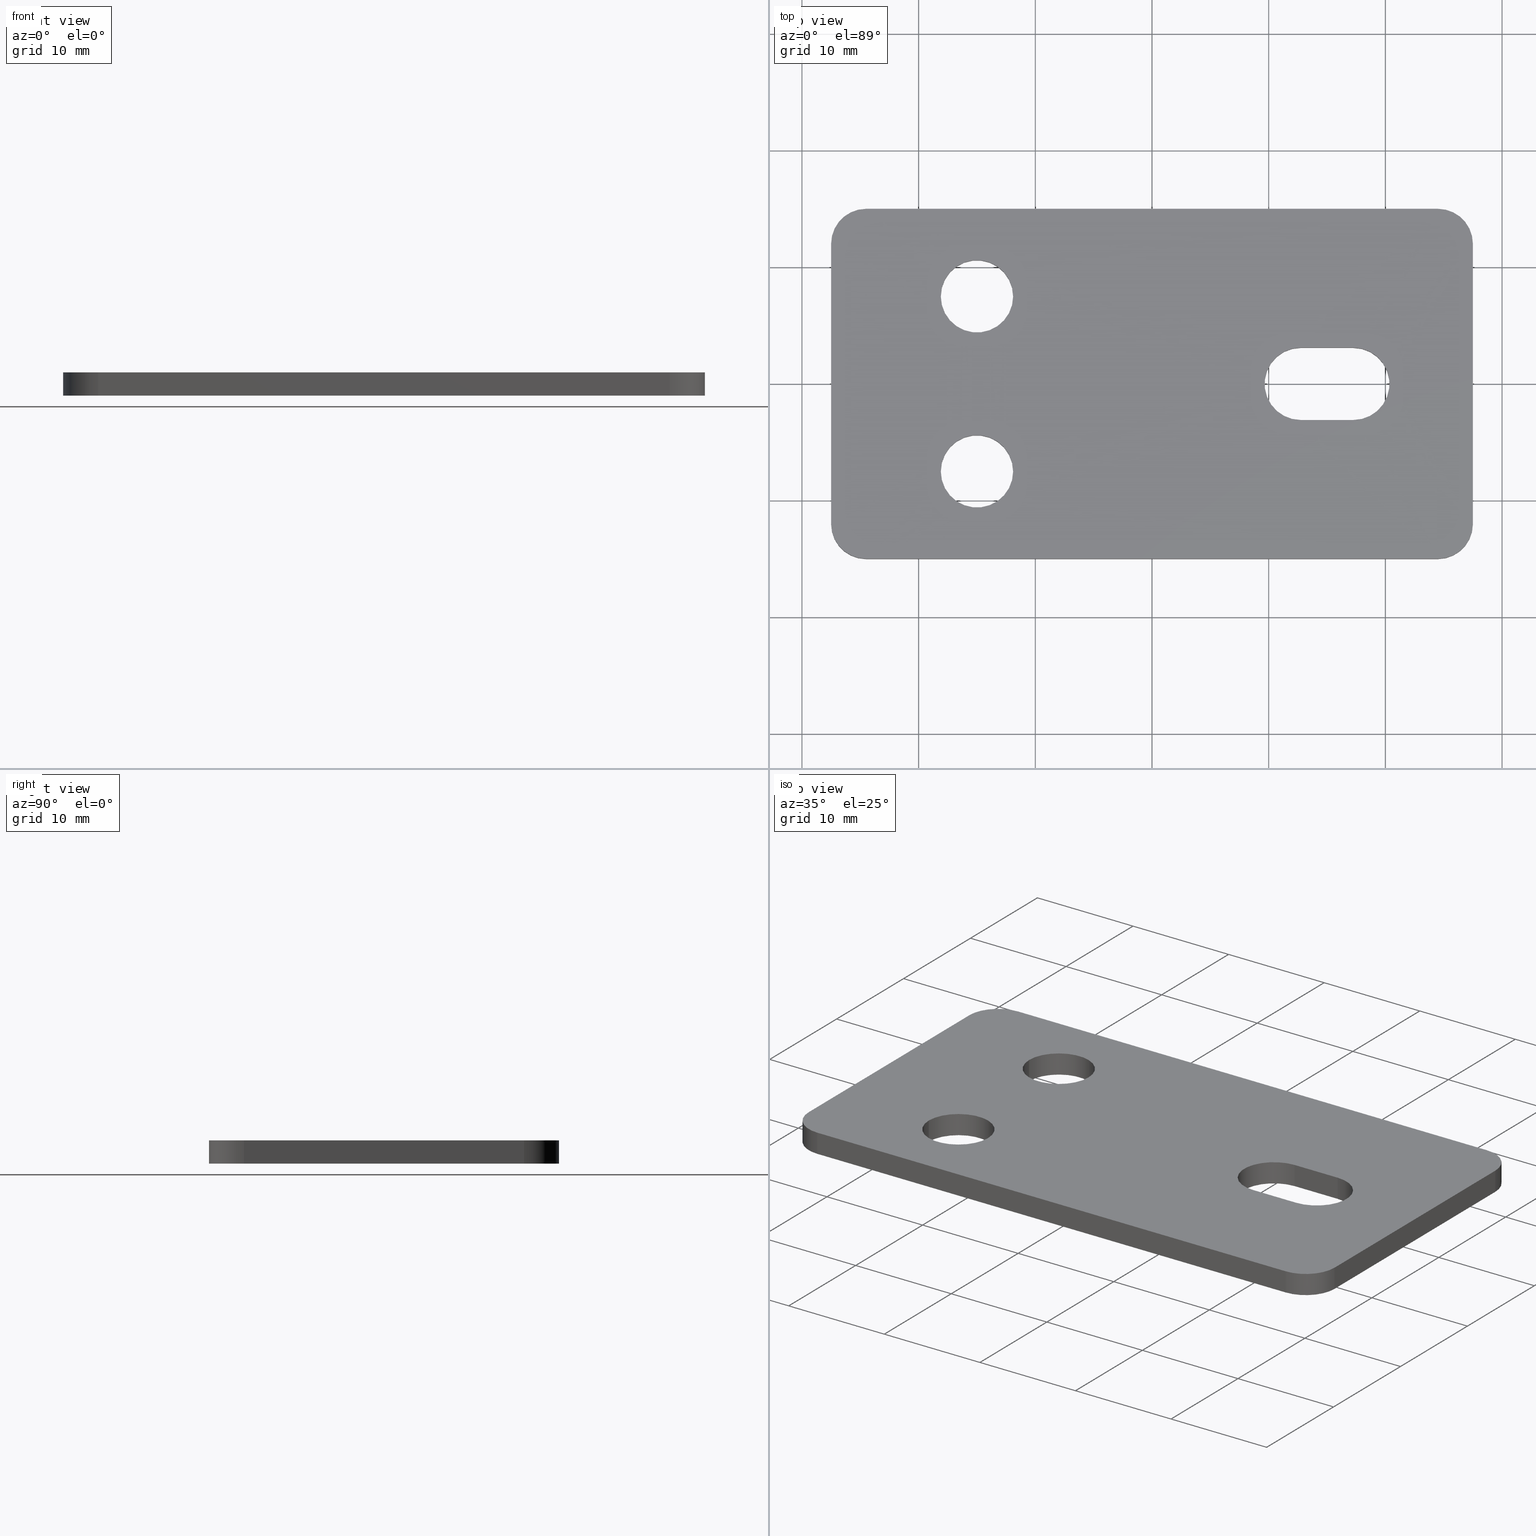
[diagram: canonical four-view strip — front | top / right | iso, engineering-drawing reading convention]
A machine part, canonical four-view strip (front | top / right | iso — engineering-drawing reading convention). The complete STEP part file that produces these views, byte-faithful:
ISO-10303-21;
HEADER;
/* Generated by software containing ST-Developer
 * from STEP Tools, Inc. (www.steptools.com) 
 */

FILE_DESCRIPTION(
/* description */ ('SUPPORTO PIATTO 30x55 #2 LAMIERA INOX'),
/* implementation_level */ '2;1');

FILE_NAME(
/* name */ 
'Q:\\Catalogo\\3_Profili e accessori MACAP\\Per Download Web e catalog
o artaceo\\ACCESSORI\\PAGINA 54\\DSPXX0000101-XT90017.stp',
/* time_stamp */ '2019-12-16T18:21:17+01:00',
/* author */ ('fzagni'),
/* organization */ (''),
/* preprocessor_version */ 'ST-DEVELOPER v17.2',
/* originating_system */ 'Autodesk Inventor 2019',
/* authorisation */ '');

FILE_SCHEMA (('AUTOMOTIVE_DESIGN { 1 0 10303 214 3 1 1 }'));
ENDSEC;

DATA;
#10=MECHANICAL_DESIGN_GEOMETRIC_PRESENTATION_REPRESENTATION('',(#13),#567);
#11=SHAPE_REPRESENTATION_RELATIONSHIP('SRR','None',#574,#12);
#12=ADVANCED_BREP_SHAPE_REPRESENTATION('',(#14),#566);
#13=STYLED_ITEM('',(#583),#14);
#14=MANIFOLD_SOLID_BREP('Solido1',#323);
#15=FACE_BOUND('',#52,.T.);
#16=FACE_BOUND('',#53,.T.);
#17=FACE_BOUND('',#54,.T.);
#18=FACE_BOUND('',#64,.T.);
#19=FACE_BOUND('',#65,.T.);
#20=FACE_BOUND('',#66,.T.);
#21=PLANE('',#346);
#22=PLANE('',#350);
#23=PLANE('',#354);
#24=PLANE('',#355);
#25=PLANE('',#363);
#26=PLANE('',#366);
#27=PLANE('',#369);
#28=PLANE('',#376);
#29=FACE_OUTER_BOUND('',#45,.T.);
#30=FACE_OUTER_BOUND('',#46,.T.);
#31=FACE_OUTER_BOUND('',#47,.T.);
#32=FACE_OUTER_BOUND('',#48,.T.);
#33=FACE_OUTER_BOUND('',#49,.T.);
#34=FACE_OUTER_BOUND('',#50,.T.);
#35=FACE_OUTER_BOUND('',#51,.T.);
#36=FACE_OUTER_BOUND('',#55,.T.);
#37=FACE_OUTER_BOUND('',#56,.T.);
#38=FACE_OUTER_BOUND('',#57,.T.);
#39=FACE_OUTER_BOUND('',#58,.T.);
#40=FACE_OUTER_BOUND('',#59,.T.);
#41=FACE_OUTER_BOUND('',#60,.T.);
#42=FACE_OUTER_BOUND('',#61,.T.);
#43=FACE_OUTER_BOUND('',#62,.T.);
#44=FACE_OUTER_BOUND('',#63,.T.);
#45=EDGE_LOOP('',(#211,#212,#213,#214));
#46=EDGE_LOOP('',(#215,#216,#217,#218));
#47=EDGE_LOOP('',(#219,#220,#221,#222));
#48=EDGE_LOOP('',(#223,#224,#225,#226));
#49=EDGE_LOOP('',(#227,#228,#229,#230));
#50=EDGE_LOOP('',(#231,#232,#233,#234));
#51=EDGE_LOOP('',(#235,#236,#237,#238,#239,#240,#241,#242));
#52=EDGE_LOOP('',(#243,#244,#245,#246));
#53=EDGE_LOOP('',(#247));
#54=EDGE_LOOP('',(#248));
#55=EDGE_LOOP('',(#249,#250,#251,#252));
#56=EDGE_LOOP('',(#253,#254,#255,#256));
#57=EDGE_LOOP('',(#257,#258,#259,#260));
#58=EDGE_LOOP('',(#261,#262,#263,#264));
#59=EDGE_LOOP('',(#265,#266,#267,#268));
#60=EDGE_LOOP('',(#269,#270,#271,#272));
#61=EDGE_LOOP('',(#273,#274,#275,#276,#277));
#62=EDGE_LOOP('',(#278,#279,#280,#281,#282));
#63=EDGE_LOOP('',(#283,#284,#285,#286,#287,#288,#289,#290));
#64=EDGE_LOOP('',(#291,#292,#293,#294));
#65=EDGE_LOOP('',(#295,#296));
#66=EDGE_LOOP('',(#297,#298));
#67=LINE('',#479,#93);
#68=LINE('',#482,#94);
#69=LINE('',#485,#95);
#70=LINE('',#487,#96);
#71=LINE('',#488,#97);
#72=LINE('',#494,#98);
#73=LINE('',#496,#99);
#74=LINE('',#497,#100);
#75=LINE('',#503,#101);
#76=LINE('',#506,#102);
#77=LINE('',#509,#103);
#78=LINE('',#511,#104);
#79=LINE('',#512,#105);
#80=LINE('',#515,#106);
#81=LINE('',#519,#107);
#82=LINE('',#523,#108);
#83=LINE('',#531,#109);
#84=LINE('',#535,#110);
#85=LINE('',#536,#111);
#86=LINE('',#539,#112);
#87=LINE('',#543,#113);
#88=LINE('',#544,#114);
#89=LINE('',#547,#115);
#90=LINE('',#550,#116);
#91=LINE('',#556,#117);
#92=LINE('',#562,#118);
#93=VECTOR('',#383,10.);
#94=VECTOR('',#386,10.);
#95=VECTOR('',#389,10.);
#96=VECTOR('',#390,10.);
#97=VECTOR('',#391,10.);
#98=VECTOR('',#398,10.);
#99=VECTOR('',#401,10.);
#100=VECTOR('',#402,10.);
#101=VECTOR('',#407,10.);
#102=VECTOR('',#410,10.);
#103=VECTOR('',#413,10.);
#104=VECTOR('',#414,10.);
#105=VECTOR('',#415,10.);
#106=VECTOR('',#418,10.);
#107=VECTOR('',#421,10.);
#108=VECTOR('',#424,10.);
#109=VECTOR('',#433,10.);
#110=VECTOR('',#438,10.);
#111=VECTOR('',#439,10.);
#112=VECTOR('',#442,10.);
#113=VECTOR('',#447,10.);
#114=VECTOR('',#448,10.);
#115=VECTOR('',#451,10.);
#116=VECTOR('',#456,10.);
#117=VECTOR('',#463,3.1);
#118=VECTOR('',#470,3.1);
#119=CIRCLE('',#344,3.1);
#120=CIRCLE('',#345,3.1);
#121=CIRCLE('',#348,3.1);
#122=CIRCLE('',#349,3.1);
#123=CIRCLE('',#352,3.);
#124=CIRCLE('',#353,3.);
#125=CIRCLE('',#356,3.);
#126=CIRCLE('',#357,3.);
#127=CIRCLE('',#358,3.);
#128=CIRCLE('',#359,3.1);
#129=CIRCLE('',#360,3.1);
#130=CIRCLE('',#362,3.);
#131=CIRCLE('',#365,3.);
#132=CIRCLE('',#368,3.);
#133=CIRCLE('',#371,3.1);
#134=CIRCLE('',#372,3.1);
#135=CIRCLE('',#374,3.1);
#136=CIRCLE('',#375,3.1);
#137=VERTEX_POINT('',#475);
#138=VERTEX_POINT('',#476);
#139=VERTEX_POINT('',#478);
#140=VERTEX_POINT('',#480);
#141=VERTEX_POINT('',#484);
#142=VERTEX_POINT('',#486);
#143=VERTEX_POINT('',#490);
#144=VERTEX_POINT('',#492);
#145=VERTEX_POINT('',#499);
#146=VERTEX_POINT('',#500);
#147=VERTEX_POINT('',#502);
#148=VERTEX_POINT('',#504);
#149=VERTEX_POINT('',#508);
#150=VERTEX_POINT('',#510);
#151=VERTEX_POINT('',#514);
#152=VERTEX_POINT('',#516);
#153=VERTEX_POINT('',#518);
#154=VERTEX_POINT('',#520);
#155=VERTEX_POINT('',#522);
#156=VERTEX_POINT('',#525);
#157=VERTEX_POINT('',#527);
#158=VERTEX_POINT('',#530);
#159=VERTEX_POINT('',#534);
#160=VERTEX_POINT('',#538);
#161=VERTEX_POINT('',#542);
#162=VERTEX_POINT('',#546);
#163=VERTEX_POINT('',#552);
#164=VERTEX_POINT('',#553);
#165=VERTEX_POINT('',#558);
#166=VERTEX_POINT('',#559);
#167=EDGE_CURVE('',#137,#138,#119,.T.);
#168=EDGE_CURVE('',#139,#137,#67,.T.);
#169=EDGE_CURVE('',#140,#139,#120,.T.);
#170=EDGE_CURVE('',#140,#138,#68,.T.);
#171=EDGE_CURVE('',#138,#141,#69,.T.);
#172=EDGE_CURVE('',#142,#140,#70,.T.);
#173=EDGE_CURVE('',#142,#141,#71,.T.);
#174=EDGE_CURVE('',#141,#143,#121,.T.);
#175=EDGE_CURVE('',#144,#142,#122,.T.);
#176=EDGE_CURVE('',#144,#143,#72,.T.);
#177=EDGE_CURVE('',#143,#137,#73,.T.);
#178=EDGE_CURVE('',#139,#144,#74,.T.);
#179=EDGE_CURVE('',#145,#146,#123,.T.);
#180=EDGE_CURVE('',#146,#147,#75,.T.);
#181=EDGE_CURVE('',#147,#148,#124,.T.);
#182=EDGE_CURVE('',#148,#145,#76,.T.);
#183=EDGE_CURVE('',#149,#148,#77,.T.);
#184=EDGE_CURVE('',#150,#149,#78,.T.);
#185=EDGE_CURVE('',#145,#150,#79,.T.);
#186=EDGE_CURVE('',#147,#151,#80,.T.);
#187=EDGE_CURVE('',#152,#151,#125,.T.);
#188=EDGE_CURVE('',#152,#153,#81,.T.);
#189=EDGE_CURVE('',#154,#153,#126,.T.);
#190=EDGE_CURVE('',#154,#155,#82,.T.);
#191=EDGE_CURVE('',#149,#155,#127,.T.);
#192=EDGE_CURVE('',#156,#156,#128,.T.);
#193=EDGE_CURVE('',#157,#157,#129,.T.);
#194=EDGE_CURVE('',#155,#158,#83,.T.);
#195=EDGE_CURVE('',#158,#150,#130,.T.);
#196=EDGE_CURVE('',#159,#154,#84,.T.);
#197=EDGE_CURVE('',#158,#159,#85,.T.);
#198=EDGE_CURVE('',#153,#160,#86,.T.);
#199=EDGE_CURVE('',#160,#159,#131,.T.);
#200=EDGE_CURVE('',#161,#152,#87,.T.);
#201=EDGE_CURVE('',#160,#161,#88,.T.);
#202=EDGE_CURVE('',#151,#162,#89,.T.);
#203=EDGE_CURVE('',#162,#161,#132,.T.);
#204=EDGE_CURVE('',#162,#146,#90,.T.);
#205=EDGE_CURVE('',#163,#164,#133,.T.);
#206=EDGE_CURVE('',#164,#163,#134,.T.);
#207=EDGE_CURVE('',#164,#156,#91,.T.);
#208=EDGE_CURVE('',#165,#166,#135,.T.);
#209=EDGE_CURVE('',#166,#165,#136,.T.);
#210=EDGE_CURVE('',#166,#157,#92,.T.);
#211=ORIENTED_EDGE('',*,*,#167,.F.);
#212=ORIENTED_EDGE('',*,*,#168,.F.);
#213=ORIENTED_EDGE('',*,*,#169,.F.);
#214=ORIENTED_EDGE('',*,*,#170,.T.);
#215=ORIENTED_EDGE('',*,*,#171,.F.);
#216=ORIENTED_EDGE('',*,*,#170,.F.);
#217=ORIENTED_EDGE('',*,*,#172,.F.);
#218=ORIENTED_EDGE('',*,*,#173,.T.);
#219=ORIENTED_EDGE('',*,*,#174,.F.);
#220=ORIENTED_EDGE('',*,*,#173,.F.);
#221=ORIENTED_EDGE('',*,*,#175,.F.);
#222=ORIENTED_EDGE('',*,*,#176,.T.);
#223=ORIENTED_EDGE('',*,*,#177,.F.);
#224=ORIENTED_EDGE('',*,*,#176,.F.);
#225=ORIENTED_EDGE('',*,*,#178,.F.);
#226=ORIENTED_EDGE('',*,*,#168,.T.);
#227=ORIENTED_EDGE('',*,*,#179,.T.);
#228=ORIENTED_EDGE('',*,*,#180,.T.);
#229=ORIENTED_EDGE('',*,*,#181,.T.);
#230=ORIENTED_EDGE('',*,*,#182,.T.);
#231=ORIENTED_EDGE('',*,*,#182,.F.);
#232=ORIENTED_EDGE('',*,*,#183,.F.);
#233=ORIENTED_EDGE('',*,*,#184,.F.);
#234=ORIENTED_EDGE('',*,*,#185,.F.);
#235=ORIENTED_EDGE('',*,*,#181,.F.);
#236=ORIENTED_EDGE('',*,*,#186,.T.);
#237=ORIENTED_EDGE('',*,*,#187,.F.);
#238=ORIENTED_EDGE('',*,*,#188,.T.);
#239=ORIENTED_EDGE('',*,*,#189,.F.);
#240=ORIENTED_EDGE('',*,*,#190,.T.);
#241=ORIENTED_EDGE('',*,*,#191,.F.);
#242=ORIENTED_EDGE('',*,*,#183,.T.);
#243=ORIENTED_EDGE('',*,*,#174,.T.);
#244=ORIENTED_EDGE('',*,*,#177,.T.);
#245=ORIENTED_EDGE('',*,*,#167,.T.);
#246=ORIENTED_EDGE('',*,*,#171,.T.);
#247=ORIENTED_EDGE('',*,*,#192,.T.);
#248=ORIENTED_EDGE('',*,*,#193,.T.);
#249=ORIENTED_EDGE('',*,*,#191,.T.);
#250=ORIENTED_EDGE('',*,*,#194,.T.);
#251=ORIENTED_EDGE('',*,*,#195,.T.);
#252=ORIENTED_EDGE('',*,*,#184,.T.);
#253=ORIENTED_EDGE('',*,*,#194,.F.);
#254=ORIENTED_EDGE('',*,*,#190,.F.);
#255=ORIENTED_EDGE('',*,*,#196,.F.);
#256=ORIENTED_EDGE('',*,*,#197,.F.);
#257=ORIENTED_EDGE('',*,*,#189,.T.);
#258=ORIENTED_EDGE('',*,*,#198,.T.);
#259=ORIENTED_EDGE('',*,*,#199,.T.);
#260=ORIENTED_EDGE('',*,*,#196,.T.);
#261=ORIENTED_EDGE('',*,*,#198,.F.);
#262=ORIENTED_EDGE('',*,*,#188,.F.);
#263=ORIENTED_EDGE('',*,*,#200,.F.);
#264=ORIENTED_EDGE('',*,*,#201,.F.);
#265=ORIENTED_EDGE('',*,*,#187,.T.);
#266=ORIENTED_EDGE('',*,*,#202,.T.);
#267=ORIENTED_EDGE('',*,*,#203,.T.);
#268=ORIENTED_EDGE('',*,*,#200,.T.);
#269=ORIENTED_EDGE('',*,*,#180,.F.);
#270=ORIENTED_EDGE('',*,*,#204,.F.);
#271=ORIENTED_EDGE('',*,*,#202,.F.);
#272=ORIENTED_EDGE('',*,*,#186,.F.);
#273=ORIENTED_EDGE('',*,*,#205,.F.);
#274=ORIENTED_EDGE('',*,*,#206,.F.);
#275=ORIENTED_EDGE('',*,*,#207,.T.);
#276=ORIENTED_EDGE('',*,*,#192,.F.);
#277=ORIENTED_EDGE('',*,*,#207,.F.);
#278=ORIENTED_EDGE('',*,*,#208,.F.);
#279=ORIENTED_EDGE('',*,*,#209,.F.);
#280=ORIENTED_EDGE('',*,*,#210,.T.);
#281=ORIENTED_EDGE('',*,*,#193,.F.);
#282=ORIENTED_EDGE('',*,*,#210,.F.);
#283=ORIENTED_EDGE('',*,*,#179,.F.);
#284=ORIENTED_EDGE('',*,*,#185,.T.);
#285=ORIENTED_EDGE('',*,*,#195,.F.);
#286=ORIENTED_EDGE('',*,*,#197,.T.);
#287=ORIENTED_EDGE('',*,*,#199,.F.);
#288=ORIENTED_EDGE('',*,*,#201,.T.);
#289=ORIENTED_EDGE('',*,*,#203,.F.);
#290=ORIENTED_EDGE('',*,*,#204,.T.);
#291=ORIENTED_EDGE('',*,*,#175,.T.);
#292=ORIENTED_EDGE('',*,*,#172,.T.);
#293=ORIENTED_EDGE('',*,*,#169,.T.);
#294=ORIENTED_EDGE('',*,*,#178,.T.);
#295=ORIENTED_EDGE('',*,*,#205,.T.);
#296=ORIENTED_EDGE('',*,*,#206,.T.);
#297=ORIENTED_EDGE('',*,*,#208,.T.);
#298=ORIENTED_EDGE('',*,*,#209,.T.);
#299=CYLINDRICAL_SURFACE('',#343,3.1);
#300=CYLINDRICAL_SURFACE('',#347,3.1);
#301=CYLINDRICAL_SURFACE('',#351,3.);
#302=CYLINDRICAL_SURFACE('',#361,3.);
#303=CYLINDRICAL_SURFACE('',#364,3.);
#304=CYLINDRICAL_SURFACE('',#367,3.);
#305=CYLINDRICAL_SURFACE('',#370,3.1);
#306=CYLINDRICAL_SURFACE('',#373,3.1);
#307=ADVANCED_FACE('',(#29),#299,.F.);
#308=ADVANCED_FACE('',(#30),#21,.F.);
#309=ADVANCED_FACE('',(#31),#300,.F.);
#310=ADVANCED_FACE('',(#32),#22,.F.);
#311=ADVANCED_FACE('',(#33),#301,.T.);
#312=ADVANCED_FACE('',(#34),#23,.T.);
#313=ADVANCED_FACE('',(#35,#15,#16,#17),#24,.F.);
#314=ADVANCED_FACE('',(#36),#302,.T.);
#315=ADVANCED_FACE('',(#37),#25,.T.);
#316=ADVANCED_FACE('',(#38),#303,.T.);
#317=ADVANCED_FACE('',(#39),#26,.T.);
#318=ADVANCED_FACE('',(#40),#304,.T.);
#319=ADVANCED_FACE('',(#41),#27,.T.);
#320=ADVANCED_FACE('',(#42),#305,.F.);
#321=ADVANCED_FACE('',(#43),#306,.F.);
#322=ADVANCED_FACE('',(#44,#18,#19,#20),#28,.T.);
#323=CLOSED_SHELL('',(#307,#308,#309,#310,#311,#312,#313,#314,#315,#316,
#317,#318,#319,#320,#321,#322));
#324=DERIVED_UNIT_ELEMENT(#326,1.);
#325=DERIVED_UNIT_ELEMENT(#569,3.);
#326=(
MASS_UNIT()
NAMED_UNIT(*)
SI_UNIT($,.GRAM.)
);
#327=DERIVED_UNIT((#324,#325));
#328=MEASURE_REPRESENTATION_ITEM('density measure',
POSITIVE_RATIO_MEASURE(8.08),#327);
#329=PROPERTY_DEFINITION_REPRESENTATION(#334,#331);
#330=PROPERTY_DEFINITION_REPRESENTATION(#335,#332);
#331=REPRESENTATION('material name',(#333),#566);
#332=REPRESENTATION('density',(#328),#566);
#333=DESCRIPTIVE_REPRESENTATION_ITEM('Acciaio Inox AISI304',
'Acciaio Inox AISI304');
#334=PROPERTY_DEFINITION('material property','material name',#576);
#335=PROPERTY_DEFINITION('material property','density of part',#576);
#336=DATE_TIME_ROLE('creation_date');
#337=APPLIED_DATE_AND_TIME_ASSIGNMENT(#338,#336,(#576));
#338=DATE_AND_TIME(#339,#340);
#339=CALENDAR_DATE(2012,28,10);
#340=LOCAL_TIME(23,0,0.,#341);
#341=COORDINATED_UNIVERSAL_TIME_OFFSET(0,0,.BEHIND.);
#342=AXIS2_PLACEMENT_3D('placement',#473,#377,#378);
#343=AXIS2_PLACEMENT_3D('',#474,#379,#380);
#344=AXIS2_PLACEMENT_3D('',#477,#381,#382);
#345=AXIS2_PLACEMENT_3D('',#481,#384,#385);
#346=AXIS2_PLACEMENT_3D('',#483,#387,#388);
#347=AXIS2_PLACEMENT_3D('',#489,#392,#393);
#348=AXIS2_PLACEMENT_3D('',#491,#394,#395);
#349=AXIS2_PLACEMENT_3D('',#493,#396,#397);
#350=AXIS2_PLACEMENT_3D('',#495,#399,#400);
#351=AXIS2_PLACEMENT_3D('',#498,#403,#404);
#352=AXIS2_PLACEMENT_3D('',#501,#405,#406);
#353=AXIS2_PLACEMENT_3D('',#505,#408,#409);
#354=AXIS2_PLACEMENT_3D('',#507,#411,#412);
#355=AXIS2_PLACEMENT_3D('',#513,#416,#417);
#356=AXIS2_PLACEMENT_3D('',#517,#419,#420);
#357=AXIS2_PLACEMENT_3D('',#521,#422,#423);
#358=AXIS2_PLACEMENT_3D('',#524,#425,#426);
#359=AXIS2_PLACEMENT_3D('',#526,#427,#428);
#360=AXIS2_PLACEMENT_3D('',#528,#429,#430);
#361=AXIS2_PLACEMENT_3D('',#529,#431,#432);
#362=AXIS2_PLACEMENT_3D('',#532,#434,#435);
#363=AXIS2_PLACEMENT_3D('',#533,#436,#437);
#364=AXIS2_PLACEMENT_3D('',#537,#440,#441);
#365=AXIS2_PLACEMENT_3D('',#540,#443,#444);
#366=AXIS2_PLACEMENT_3D('',#541,#445,#446);
#367=AXIS2_PLACEMENT_3D('',#545,#449,#450);
#368=AXIS2_PLACEMENT_3D('',#548,#452,#453);
#369=AXIS2_PLACEMENT_3D('',#549,#454,#455);
#370=AXIS2_PLACEMENT_3D('',#551,#457,#458);
#371=AXIS2_PLACEMENT_3D('',#554,#459,#460);
#372=AXIS2_PLACEMENT_3D('',#555,#461,#462);
#373=AXIS2_PLACEMENT_3D('',#557,#464,#465);
#374=AXIS2_PLACEMENT_3D('',#560,#466,#467);
#375=AXIS2_PLACEMENT_3D('',#561,#468,#469);
#376=AXIS2_PLACEMENT_3D('',#563,#471,#472);
#377=DIRECTION('axis',(0.,0.,1.));
#378=DIRECTION('refdir',(1.,0.,0.));
#379=DIRECTION('center_axis',(0.,0.,-1.));
#380=DIRECTION('ref_axis',(0.,-1.,0.));
#381=DIRECTION('center_axis',(0.,0.,1.));
#382=DIRECTION('ref_axis',(0.,-1.,0.));
#383=DIRECTION('',(0.,0.,-1.));
#384=DIRECTION('center_axis',(0.,0.,-1.));
#385=DIRECTION('ref_axis',(0.,-1.,0.));
#386=DIRECTION('',(0.,0.,-1.));
#387=DIRECTION('center_axis',(-1.2335811384724E-16,1.,0.));
#388=DIRECTION('ref_axis',(1.,1.2335811384724E-16,0.));
#389=DIRECTION('',(-1.,-1.2335811384724E-16,0.));
#390=DIRECTION('',(1.,1.2335811384724E-16,0.));
#391=DIRECTION('',(0.,0.,-1.));
#392=DIRECTION('center_axis',(0.,0.,-1.));
#393=DIRECTION('ref_axis',(0.,1.,0.));
#394=DIRECTION('center_axis',(0.,0.,1.));
#395=DIRECTION('ref_axis',(0.,1.,0.));
#396=DIRECTION('center_axis',(0.,0.,-1.));
#397=DIRECTION('ref_axis',(0.,1.,0.));
#398=DIRECTION('',(0.,0.,-1.));
#399=DIRECTION('center_axis',(2.46716227694479E-16,-1.,0.));
#400=DIRECTION('ref_axis',(-1.,-2.46716227694479E-16,0.));
#401=DIRECTION('',(1.,2.46716227694479E-16,0.));
#402=DIRECTION('',(-1.,-2.46716227694479E-16,0.));
#403=DIRECTION('center_axis',(0.,0.,1.));
#404=DIRECTION('ref_axis',(-0.707106781186549,0.707106781186546,0.));
#405=DIRECTION('center_axis',(0.,0.,-1.));
#406=DIRECTION('ref_axis',(-0.707106781186549,0.707106781186546,0.));
#407=DIRECTION('',(0.,0.,-1.));
#408=DIRECTION('center_axis',(0.,0.,1.));
#409=DIRECTION('ref_axis',(-0.707106781186549,0.707106781186546,0.));
#410=DIRECTION('',(0.,0.,1.));
#411=DIRECTION('center_axis',(-1.,-2.96059473233375E-16,0.));
#412=DIRECTION('ref_axis',(2.96059473233375E-16,-1.,0.));
#413=DIRECTION('',(-2.96059473233375E-16,1.,0.));
#414=DIRECTION('',(0.,0.,-1.));
#415=DIRECTION('',(2.96059473233375E-16,-1.,0.));
#416=DIRECTION('center_axis',(0.,0.,1.));
#417=DIRECTION('ref_axis',(1.,0.,0.));
#418=DIRECTION('',(1.,-4.03717463500057E-17,0.));
#419=DIRECTION('center_axis',(0.,0.,1.));
#420=DIRECTION('ref_axis',(0.707106781186549,0.707106781186546,0.));
#421=DIRECTION('',(0.,-1.,0.));
#422=DIRECTION('center_axis',(0.,0.,1.));
#423=DIRECTION('ref_axis',(0.707106781186548,-0.707106781186547,0.));
#424=DIRECTION('',(-1.,1.61486985400023E-16,0.));
#425=DIRECTION('center_axis',(0.,0.,1.));
#426=DIRECTION('ref_axis',(-0.707106781186549,-0.707106781186546,0.));
#427=DIRECTION('center_axis',(0.,0.,1.));
#428=DIRECTION('ref_axis',(1.,0.,0.));
#429=DIRECTION('center_axis',(0.,0.,1.));
#430=DIRECTION('ref_axis',(1.,0.,0.));
#431=DIRECTION('center_axis',(0.,0.,-1.));
#432=DIRECTION('ref_axis',(-0.707106781186549,-0.707106781186546,0.));
#433=DIRECTION('',(0.,0.,1.));
#434=DIRECTION('center_axis',(0.,0.,-1.));
#435=DIRECTION('ref_axis',(-0.707106781186549,-0.707106781186546,0.));
#436=DIRECTION('center_axis',(-1.61486985400023E-16,-1.,0.));
#437=DIRECTION('ref_axis',(1.,-1.61486985400023E-16,0.));
#438=DIRECTION('',(0.,0.,-1.));
#439=DIRECTION('',(1.,-1.61486985400023E-16,0.));
#440=DIRECTION('center_axis',(0.,0.,-1.));
#441=DIRECTION('ref_axis',(0.707106781186548,-0.707106781186547,0.));
#442=DIRECTION('',(0.,0.,1.));
#443=DIRECTION('center_axis',(0.,0.,-1.));
#444=DIRECTION('ref_axis',(0.707106781186548,-0.707106781186547,0.));
#445=DIRECTION('center_axis',(1.,0.,0.));
#446=DIRECTION('ref_axis',(0.,1.,0.));
#447=DIRECTION('',(0.,0.,-1.));
#448=DIRECTION('',(0.,1.,0.));
#449=DIRECTION('center_axis',(0.,0.,-1.));
#450=DIRECTION('ref_axis',(0.707106781186549,0.707106781186546,0.));
#451=DIRECTION('',(0.,0.,1.));
#452=DIRECTION('center_axis',(0.,0.,-1.));
#453=DIRECTION('ref_axis',(0.707106781186549,0.707106781186546,0.));
#454=DIRECTION('center_axis',(4.03717463500057E-17,1.,0.));
#455=DIRECTION('ref_axis',(-1.,4.03717463500057E-17,0.));
#456=DIRECTION('',(-1.,4.03717463500057E-17,0.));
#457=DIRECTION('center_axis',(0.,0.,1.));
#458=DIRECTION('ref_axis',(1.,0.,0.));
#459=DIRECTION('center_axis',(0.,0.,-1.));
#460=DIRECTION('ref_axis',(1.,0.,0.));
#461=DIRECTION('center_axis',(0.,0.,-1.));
#462=DIRECTION('ref_axis',(1.,0.,0.));
#463=DIRECTION('',(0.,0.,-1.));
#464=DIRECTION('center_axis',(0.,0.,1.));
#465=DIRECTION('ref_axis',(1.,0.,0.));
#466=DIRECTION('center_axis',(0.,0.,-1.));
#467=DIRECTION('ref_axis',(1.,0.,0.));
#468=DIRECTION('center_axis',(0.,0.,-1.));
#469=DIRECTION('ref_axis',(1.,0.,0.));
#470=DIRECTION('',(0.,0.,-1.));
#471=DIRECTION('center_axis',(0.,0.,1.));
#472=DIRECTION('ref_axis',(1.,0.,0.));
#473=CARTESIAN_POINT('',(0.,0.,0.));
#474=CARTESIAN_POINT('Origin',(17.25,1.53267676143421E-15,1.));
#475=CARTESIAN_POINT('',(17.25,-3.1,-1.));
#476=CARTESIAN_POINT('',(17.25,3.1,-1.));
#477=CARTESIAN_POINT('Origin',(17.25,1.53267676143421E-15,-1.));
#478=CARTESIAN_POINT('',(17.25,-3.1,1.));
#479=CARTESIAN_POINT('',(17.25,-3.1,1.));
#480=CARTESIAN_POINT('',(17.25,3.1,1.));
#481=CARTESIAN_POINT('Origin',(17.25,1.53267676143421E-15,1.));
#482=CARTESIAN_POINT('',(17.25,3.1,1.));
#483=CARTESIAN_POINT('Origin',(12.75,3.1,1.));
#484=CARTESIAN_POINT('',(12.75,3.1,-1.));
#485=CARTESIAN_POINT('',(6.375,3.1,-1.));
#486=CARTESIAN_POINT('',(12.75,3.1,1.));
#487=CARTESIAN_POINT('',(6.375,3.1,1.));
#488=CARTESIAN_POINT('',(12.75,3.1,1.));
#489=CARTESIAN_POINT('Origin',(12.75,1.54949112393436E-16,1.));
#490=CARTESIAN_POINT('',(12.75,-3.1,-1.));
#491=CARTESIAN_POINT('Origin',(12.75,1.54949112393436E-16,-1.));
#492=CARTESIAN_POINT('',(12.75,-3.1,1.));
#493=CARTESIAN_POINT('Origin',(12.75,1.54949112393436E-16,1.));
#494=CARTESIAN_POINT('',(12.75,-3.1,1.));
#495=CARTESIAN_POINT('Origin',(17.25,-3.1,1.));
#496=CARTESIAN_POINT('',(8.625,-3.1,-1.));
#497=CARTESIAN_POINT('',(8.625,-3.1,1.));
#498=CARTESIAN_POINT('Origin',(-24.5,12.,0.));
#499=CARTESIAN_POINT('',(-27.5,12.,1.));
#500=CARTESIAN_POINT('',(-24.5,15.,1.));
#501=CARTESIAN_POINT('Origin',(-24.5,12.,1.));
#502=CARTESIAN_POINT('',(-24.5,15.,-1.));
#503=CARTESIAN_POINT('',(-24.5,15.,0.));
#504=CARTESIAN_POINT('',(-27.5,12.,-1.));
#505=CARTESIAN_POINT('Origin',(-24.5,12.,-1.));
#506=CARTESIAN_POINT('',(-27.5,12.,0.));
#507=CARTESIAN_POINT('Origin',(-27.5,15.,0.));
#508=CARTESIAN_POINT('',(-27.5,-12.,-1.));
#509=CARTESIAN_POINT('',(-27.5,-15.,-1.));
#510=CARTESIAN_POINT('',(-27.5,-12.,1.));
#511=CARTESIAN_POINT('',(-27.5,-12.,0.));
#512=CARTESIAN_POINT('',(-27.5,-15.,1.));
#513=CARTESIAN_POINT('Origin',(3.1347473636475E-15,2.35106052273563E-15,
-1.));
#514=CARTESIAN_POINT('',(24.5,15.,-1.));
#515=CARTESIAN_POINT('',(-27.5,15.,-1.));
#516=CARTESIAN_POINT('',(27.5,12.,-1.));
#517=CARTESIAN_POINT('Origin',(24.5,12.,-1.));
#518=CARTESIAN_POINT('',(27.5,-12.,-1.));
#519=CARTESIAN_POINT('',(27.5,15.,-1.));
#520=CARTESIAN_POINT('',(24.5,-15.,-1.));
#521=CARTESIAN_POINT('Origin',(24.5,-12.,-1.));
#522=CARTESIAN_POINT('',(-24.5,-15.,-1.));
#523=CARTESIAN_POINT('',(27.5,-15.,-1.));
#524=CARTESIAN_POINT('Origin',(-24.5,-12.,-1.));
#525=CARTESIAN_POINT('',(-18.1,7.5,-0.999999999999996));
#526=CARTESIAN_POINT('Origin',(-15.,7.5,-0.999999999999996));
#527=CARTESIAN_POINT('',(-18.1,-7.49999999999999,-0.999999999999996));
#528=CARTESIAN_POINT('Origin',(-15.,-7.49999999999999,-0.999999999999996));
#529=CARTESIAN_POINT('Origin',(-24.5,-12.,0.));
#530=CARTESIAN_POINT('',(-24.5,-15.,1.));
#531=CARTESIAN_POINT('',(-24.5,-15.,0.));
#532=CARTESIAN_POINT('Origin',(-24.5,-12.,1.));
#533=CARTESIAN_POINT('Origin',(-27.5,-15.,0.));
#534=CARTESIAN_POINT('',(24.5,-15.,1.));
#535=CARTESIAN_POINT('',(24.5,-15.,0.));
#536=CARTESIAN_POINT('',(27.5,-15.,1.));
#537=CARTESIAN_POINT('Origin',(24.5,-12.,0.));
#538=CARTESIAN_POINT('',(27.5,-12.,1.));
#539=CARTESIAN_POINT('',(27.5,-12.,0.));
#540=CARTESIAN_POINT('Origin',(24.5,-12.,1.));
#541=CARTESIAN_POINT('Origin',(27.5,-15.,0.));
#542=CARTESIAN_POINT('',(27.5,12.,1.));
#543=CARTESIAN_POINT('',(27.5,12.,0.));
#544=CARTESIAN_POINT('',(27.5,15.,1.));
#545=CARTESIAN_POINT('Origin',(24.5,12.,0.));
#546=CARTESIAN_POINT('',(24.5,15.,1.));
#547=CARTESIAN_POINT('',(24.5,15.,0.));
#548=CARTESIAN_POINT('Origin',(24.5,12.,1.));
#549=CARTESIAN_POINT('Origin',(27.5,15.,0.));
#550=CARTESIAN_POINT('',(-27.5,15.,1.));
#551=CARTESIAN_POINT('Origin',(-15.,7.5,-61.6817357768593));
#552=CARTESIAN_POINT('',(-11.9,7.5,1.));
#553=CARTESIAN_POINT('',(-18.1,7.5,0.999999999999996));
#554=CARTESIAN_POINT('Origin',(-15.,7.5,0.999999999999996));
#555=CARTESIAN_POINT('Origin',(-15.,7.5,0.999999999999996));
#556=CARTESIAN_POINT('',(-18.1,7.5,-61.6817357768593));
#557=CARTESIAN_POINT('Origin',(-15.,-7.49999999999999,-61.6817357768593));
#558=CARTESIAN_POINT('',(-11.9,-7.49999999999999,1.));
#559=CARTESIAN_POINT('',(-18.1,-7.49999999999999,0.999999999999996));
#560=CARTESIAN_POINT('Origin',(-15.,-7.49999999999999,0.999999999999996));
#561=CARTESIAN_POINT('Origin',(-15.,-7.49999999999999,0.999999999999996));
#562=CARTESIAN_POINT('',(-18.1,-7.49999999999999,-61.6817357768593));
#563=CARTESIAN_POINT('Origin',(3.1347473636475E-15,2.35106052273563E-15,
1.));
#564=UNCERTAINTY_MEASURE_WITH_UNIT(LENGTH_MEASURE(0.01),#568,
'DISTANCE_ACCURACY_VALUE',
'Maximum model space distance between geometric entities at asserted c
onnectivities');
#565=UNCERTAINTY_MEASURE_WITH_UNIT(LENGTH_MEASURE(0.01),#568,
'DISTANCE_ACCURACY_VALUE',
'Maximum model space distance between geometric entities at asserted c
onnectivities');
#566=(
GEOMETRIC_REPRESENTATION_CONTEXT(3)
GLOBAL_UNCERTAINTY_ASSIGNED_CONTEXT((#564))
GLOBAL_UNIT_ASSIGNED_CONTEXT((#568,#570,#571))
REPRESENTATION_CONTEXT('','3D')
);
#567=(
GEOMETRIC_REPRESENTATION_CONTEXT(3)
GLOBAL_UNCERTAINTY_ASSIGNED_CONTEXT((#565))
GLOBAL_UNIT_ASSIGNED_CONTEXT((#568,#570,#571))
REPRESENTATION_CONTEXT('','3D')
);
#568=(
LENGTH_UNIT()
NAMED_UNIT(*)
SI_UNIT(.MILLI.,.METRE.)
);
#569=(
LENGTH_UNIT()
NAMED_UNIT(*)
SI_UNIT(.CENTI.,.METRE.)
);
#570=(
NAMED_UNIT(*)
PLANE_ANGLE_UNIT()
SI_UNIT($,.RADIAN.)
);
#571=(
NAMED_UNIT(*)
SI_UNIT($,.STERADIAN.)
SOLID_ANGLE_UNIT()
);
#572=SHAPE_DEFINITION_REPRESENTATION(#573,#574);
#573=PRODUCT_DEFINITION_SHAPE('',$,#576);
#574=SHAPE_REPRESENTATION('',(#342),#566);
#575=PRODUCT_DEFINITION_CONTEXT('part definition',#580,'design');
#576=PRODUCT_DEFINITION('XT90017','XT90017',#577,#575);
#577=PRODUCT_DEFINITION_FORMATION('C',$,#582);
#578=PRODUCT_RELATED_PRODUCT_CATEGORY('XT90017','XT90017',(#582));
#579=APPLICATION_PROTOCOL_DEFINITION('international standard',
'automotive_design',2009,#580);
#580=APPLICATION_CONTEXT(
'Core Data for Automotive Mechanical Design Process');
#581=PRODUCT_CONTEXT('part definition',#580,'mechanical');
#582=PRODUCT('XT90017','XT90017',
'SUPPORTO PIATTO 30x55 #2 LAMIERA INOX',(#581));
#583=PRESENTATION_STYLE_ASSIGNMENT((#584));
#584=SURFACE_STYLE_USAGE(.BOTH.,#587);
#585=SURFACE_STYLE_RENDERING_WITH_PROPERTIES($,#591,(#586));
#586=SURFACE_STYLE_TRANSPARENT(0.);
#587=SURFACE_SIDE_STYLE('',(#588,#585));
#588=SURFACE_STYLE_FILL_AREA(#589);
#589=FILL_AREA_STYLE('',(#590));
#590=FILL_AREA_STYLE_COLOUR('',#591);
#591=COLOUR_RGB('',0.745098039215686,0.737254901960784,0.729411764705882);
ENDSEC;
END-ISO-10303-21;
